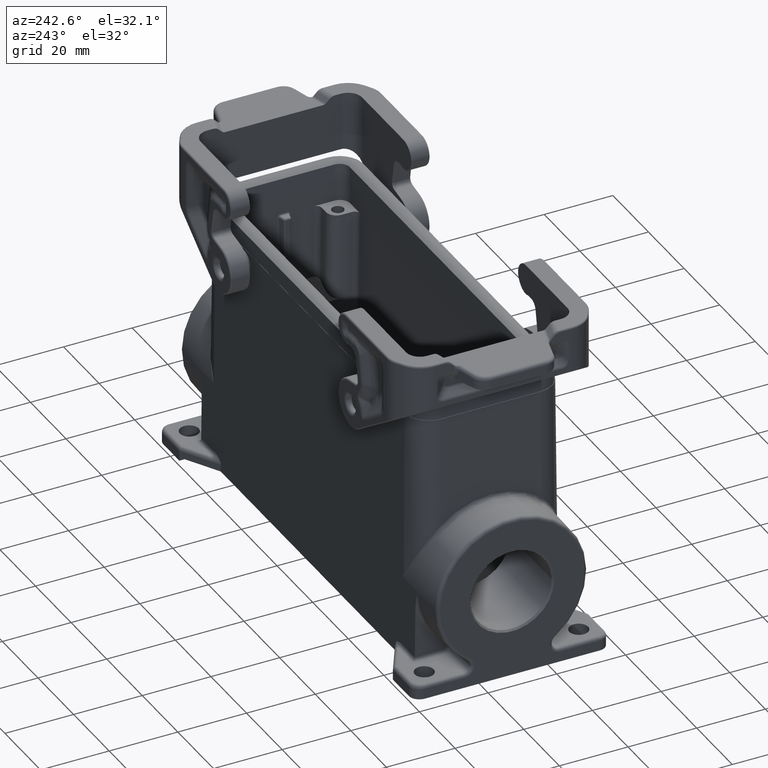
[diagram: clean part render]
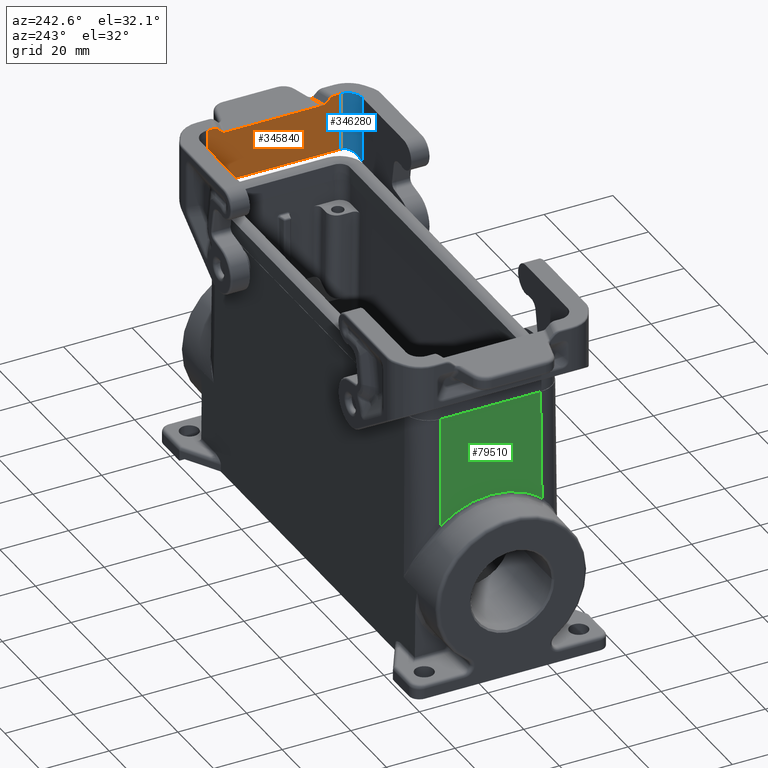
[diagram: same view with three faces highlighted in distinct colors, each labeled with its STEP entity id]
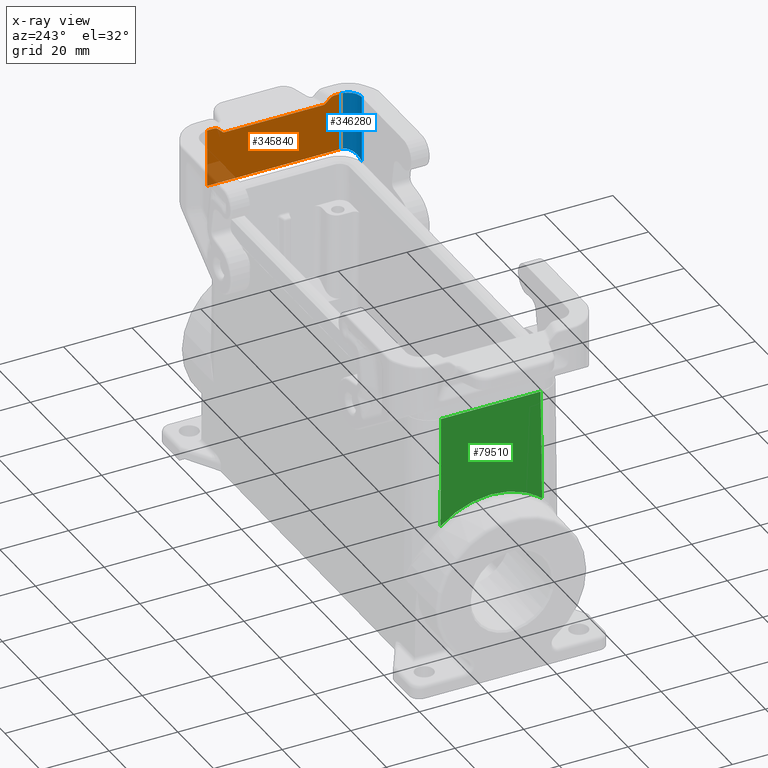
[diagram: x-ray of the same camera — body ghosted, the three highlighted faces saturated]
A machine part, auxiliary view with three faces highlighted in distinct colors.
The next image is the same camera in x-ray (body ghosted, the three faces saturated) — at least one of them is partly hidden behind the body in this view.
Their STEP definitions:

[orange] entity #345840 — the highlighted planar face has unit normal (1, -0, 0).
#226130=CARTESIAN_POINT('',(-1.43142200016536,20.7050799999998,
79.2847144494721));
#226140=VERTEX_POINT('',#226130);
#226170=CARTESIAN_POINT('',(-1.43142200016536,71.20508,79.2847144494419)
);
#226180=DIRECTION('',(-4.93038065763132E-32,-1.,1.16533684635963E-15));
#226190=VECTOR('',#226180,1.);
#226200=LINE('',#226170,#226190);
#226210=CARTESIAN_POINT('',(-1.43142200016536,59.7050799999999,
79.284714449472));
#226220=VERTEX_POINT('',#226210);
#226230=EDGE_CURVE('',#226220,#226140,#226200,.T.);
#314880=CARTESIAN_POINT('',(-1.43142200016536,59.70508,96.2000000000498)
);
#314890=VERTEX_POINT('',#314880);
#314920=CARTESIAN_POINT('',(-1.43142200016536,71.20508,96.2000000000748)
);
#314930=DIRECTION('',(-9.86076131526265E-32,-1.,-8.32667268468854E-17));
#314940=VECTOR('',#314930,1.);
#314950=LINE('',#314920,#314940);
#314960=CARTESIAN_POINT('',(-1.43142200016536,57.8832832302493,
96.2000000000498));
#314970=VERTEX_POINT('',#314960);
#314980=EDGE_CURVE('',#314890,#314970,#314950,.T.);
#336720=CARTESIAN_POINT('',(-1.43142200016536,23.9909783848622,
95.6142135624479));
#336730=VERTEX_POINT('',#336720);
#336760=CARTESIAN_POINT('',(-1.43142200016536,22.5268767697245,
94.2000000000748));
#336770=DIRECTION('',(-1.,2.46519032881566E-32,-5.44990558362115E-32));
#336780=DIRECTION('',(-2.46519032881566E-32,1.,8.72591889646287E-17));
#336790=AXIS2_PLACEMENT_3D('',#336760,#336770,#336780);
#336800=ELLIPSE('',#336790,2.07055236082017,2.);
#336810=CARTESIAN_POINT('',(-1.43142200016541,22.5268767697245,
96.2000000000748));
#336820=VERTEX_POINT('',#336810);
#336830=EDGE_CURVE('',#336820,#336730,#336800,.T.);
#337080=CARTESIAN_POINT('',(-1.43142200016536,57.8832832302493,
94.2000000000498));
#337090=DIRECTION('',(-1.,2.46519032881566E-32,-5.44990558362115E-32));
#337100=DIRECTION('',(-2.46519032881566E-32,1.,-2.47131214146301E-17));
#337110=AXIS2_PLACEMENT_3D('',#337080,#337090,#337100);
#337120=ELLIPSE('',#337110,2.07055236082017,2.);
#337130=CARTESIAN_POINT('',(-1.43142200016536,56.4191816151115,
95.6142135624229));
#337140=VERTEX_POINT('',#337130);
#337150=EDGE_CURVE('',#337140,#314970,#337120,.T.);
#337400=CARTESIAN_POINT('',(-1.43142200016524,10.9896899531708,
51.7326942909705));
#337410=DIRECTION('',(-6.70346867295264E-17,-0.719254596676404,
-0.694746590606866));
#337420=VECTOR('',#337410,1.);
#337430=LINE('',#337400,#337420);
#337440=CARTESIAN_POINT('',(-1.43142200016536,55.2583053728411,
94.4928932188885));
#337450=VERTEX_POINT('',#337440);
#337460=EDGE_CURVE('',#337140,#337450,#337430,.T.);
#344150=CARTESIAN_POINT('',(-1.43142200016536,54.5262545652722,
94.200000000075));
#344160=VERTEX_POINT('',#344150);
#344190=CARTESIAN_POINT('',(-1.43142200016536,69.95508,94.200000000075))
;
#344200=DIRECTION('',(9.86076131526265E-32,1.,8.32667268468865E-17));
#344210=VECTOR('',#344200,1.);
#344220=LINE('',#344190,#344210);
#344230=CARTESIAN_POINT('',(-1.43142200016541,25.8839054347276,
94.200000000075));
#344240=VERTEX_POINT('',#344230);
#344250=EDGE_CURVE('',#344240,#344160,#344220,.T.);
#344940=CARTESIAN_POINT('',(-1.43142200016518,25.1518546271587,
94.4928932188884));
#344950=VERTEX_POINT('',#344940);
#344980=CARTESIAN_POINT('',(-1.43142200016524,69.4204700468289,
51.7326942909705));
#344990=DIRECTION('',(-6.70346867295265E-17,0.719254596676404,
-0.694746590606865));
#345000=VECTOR('',#344990,1.);
#345010=LINE('',#344980,#345000);
#345020=EDGE_CURVE('',#336730,#344950,#345010,.T.);
#345230=CARTESIAN_POINT('',(-1.43142200016536,25.8839054347276,
95.200000000075));
#345240=DIRECTION('',(-1.,2.46519032881566E-32,-5.44990558362115E-32));
#345250=DIRECTION('',(-2.46519032881566E-32,1.,8.72591889646287E-17));
#345260=AXIS2_PLACEMENT_3D('',#345230,#345240,#345250);
#345270=ELLIPSE('',#345260,1.03527618041008,1.);
#345280=EDGE_CURVE('',#344240,#344950,#345270,.T.);
#345420=CARTESIAN_POINT('',(-1.43142200016536,60.4550802623444,
84.4173116978951));
#345430=DIRECTION('',(-1.,-3.246669353896E-48,3.89911970464034E-32));
#345440=DIRECTION('',(0.,1.,8.32667268468865E-17));
#345450=AXIS2_PLACEMENT_3D('',#345420,#345430,#345440);
#345460=PLANE('',#345450);
#345470=ORIENTED_EDGE('',*,*,#226230,.F.);
#345480=CARTESIAN_POINT('',(-1.43142200016536,20.7050799999992,
204.73222618257));
#345490=DIRECTION('',(-3.53180014490873E-31,4.22030405176146E-15,-1.));
#345500=VECTOR('',#345490,1.);
#345510=LINE('',#345480,#345500);
#345520=CARTESIAN_POINT('',(-1.43142200016536,20.7050799999997,
96.2000000000748));
#345530=VERTEX_POINT('',#345520);
#345540=EDGE_CURVE('',#345530,#226140,#345510,.T.);
#345550=ORIENTED_EDGE('',*,*,#345540,.T.);
#345560=CARTESIAN_POINT('',(-1.43142200016536,71.20508,96.2000000000748)
);
#345570=DIRECTION('',(9.86076131526265E-32,1.,8.32667268468897E-17));
#345580=VECTOR('',#345570,1.);
#345590=LINE('',#345560,#345580);
#345600=EDGE_CURVE('',#345530,#336820,#345590,.T.);
#345610=ORIENTED_EDGE('',*,*,#345600,.F.);
#345620=ORIENTED_EDGE('',*,*,#336830,.F.);
#345630=ORIENTED_EDGE('',*,*,#345020,.F.);
#345640=ORIENTED_EDGE('',*,*,#345280,.T.);
#345650=ORIENTED_EDGE('',*,*,#344250,.F.);
#345660=CARTESIAN_POINT('',(-1.43142200016536,54.5262545652722,
95.200000000075));
#345670=DIRECTION('',(-1.,2.46519032881566E-32,-5.44990558362115E-32));
#345680=DIRECTION('',(-2.46519032881566E-32,1.,-2.47131214146301E-17));
#345690=AXIS2_PLACEMENT_3D('',#345660,#345670,#345680);
#345700=ELLIPSE('',#345690,1.03527618041008,1.);
#345710=EDGE_CURVE('',#337450,#344160,#345700,.T.);
#345720=ORIENTED_EDGE('',*,*,#345710,.T.);
#345730=ORIENTED_EDGE('',*,*,#337460,.T.);
#345740=ORIENTED_EDGE('',*,*,#337150,.F.);
#345750=ORIENTED_EDGE('',*,*,#314980,.T.);
#345760=CARTESIAN_POINT('',(-1.43142200016536,59.7050800000001,
204.73222618257));
#345770=DIRECTION('',(7.34599760686103E-47,1.29574571479132E-15,1.));
#345780=VECTOR('',#345770,1.);
#345790=LINE('',#345760,#345780);
#345800=EDGE_CURVE('',#226220,#314890,#345790,.T.);
#345810=ORIENTED_EDGE('',*,*,#345800,.T.);
#345820=EDGE_LOOP('',(#345810,#345750,#345740,#345730,#345720,#345650,
#345640,#345630,#345620,#345610,#345550,#345470));
#345830=FACE_OUTER_BOUND('',#345820,.T.);
#345840=ADVANCED_FACE('',(#345830),#345460,.F.);

[blue] entity #346280 — the highlighted cylindrical surface (edge-blend (fillet) strip) has radius 4 mm, axis along (0, 0, -1).
#226210=CARTESIAN_POINT('',(-1.43142200016536,59.7050799999999,
79.284714449472));
#226220=VERTEX_POINT('',#226210);
#226250=CARTESIAN_POINT('',(2.56857799983464,59.7050799999999,
76.4838842966338));
#226260=DIRECTION('',(0.573576436350952,9.54588059980854E-16,
0.819152044289058));
#226270=DIRECTION('',(0.819152044289058,-8.95770679271245E-16,
-0.573576436350952));
#226280=AXIS2_PLACEMENT_3D('',#226250,#226260,#226270);
#226290=ELLIPSE('',#226280,4.88309835504543,4.);
#226300=CARTESIAN_POINT('',(2.56857799983464,63.7050799999999,
76.4838842966339));
#226310=VERTEX_POINT('',#226300);
#226320=EDGE_CURVE('',#226310,#226220,#226290,.T.);
#314790=CARTESIAN_POINT('',(2.56857799983464,63.70508,96.2000000000498))
;
#314800=VERTEX_POINT('',#314790);
#314830=CARTESIAN_POINT('',(2.56857799983464,59.70508,96.2000000000498))
;
#314840=DIRECTION('',(-7.34599760686103E-47,-1.29574571479132E-15,-1.));
#314850=DIRECTION('',(1.,-1.8624316551225E-16,2.95822839457879E-31));
#314860=AXIS2_PLACEMENT_3D('',#314830,#314840,#314850);
#314870=CIRCLE('',#314860,4.);
#314880=CARTESIAN_POINT('',(-1.43142200016536,59.70508,96.2000000000498)
);
#314890=VERTEX_POINT('',#314880);
#314900=EDGE_CURVE('',#314890,#314800,#314870,.T.);
#345760=CARTESIAN_POINT('',(-1.43142200016536,59.7050800000001,
204.73222618257));
#345770=DIRECTION('',(7.34599760686103E-47,1.29574571479132E-15,1.));
#345780=VECTOR('',#345770,1.);
#345790=LINE('',#345760,#345780);
#345800=EDGE_CURVE('',#226220,#314890,#345790,.T.);
#346120=CARTESIAN_POINT('',(2.56857799983464,59.7050800000001,
204.73222618257));
#346130=DIRECTION('',(-7.34599760686103E-47,-1.29574571479132E-15,-1.));
#346140=DIRECTION('',(1.,-1.8624316551225E-16,2.95822839457879E-31));
#346150=AXIS2_PLACEMENT_3D('',#346120,#346130,#346140);
#346160=CYLINDRICAL_SURFACE('',#346150,4.);
#346170=ORIENTED_EDGE('',*,*,#314900,.F.);
#346180=CARTESIAN_POINT('',(2.56857799983464,63.7050800000001,
204.73222618257));
#346190=DIRECTION('',(7.34599760686103E-47,1.29574571479132E-15,1.));
#346200=VECTOR('',#346190,1.);
#346210=LINE('',#346180,#346200);
#346220=EDGE_CURVE('',#226310,#314800,#346210,.T.);
#346230=ORIENTED_EDGE('',*,*,#346220,.T.);
#346240=ORIENTED_EDGE('',*,*,#226320,.F.);
#346250=ORIENTED_EDGE('',*,*,#345800,.F.);
#346260=EDGE_LOOP('',(#346250,#346240,#346230,#346170));
#346270=FACE_OUTER_BOUND('',#346260,.T.);
#346280=ADVANCED_FACE('',(#346270),#346160,.F.);

[green] entity #79510 — the highlighted planar face has unit normal (1, -0, -0.0087).
#1300=CARTESIAN_POINT('',(120.318578,25.7048134614492,74.5));
#1310=VERTEX_POINT('',#1300);
#1830=CARTESIAN_POINT('',(120.318578,54.7053465385508,74.5));
#1840=VERTEX_POINT('',#1830);
#1870=CARTESIAN_POINT('',(120.318578,0.,74.5));
#1880=DIRECTION('',(1.06873307065349E-18,1.,0.));
#1890=VECTOR('',#1880,1.);
#1900=LINE('',#1870,#1890);
#1910=EDGE_CURVE('',#1310,#1840,#1900,.T.);
#57470=CARTESIAN_POINT('',(120.601970741967,54.9887392805179,
42.0264082415494));
#57480=VERTEX_POINT('',#57470);
#57510=CARTESIAN_POINT('',(120.968196563161,55.3549651017114,
0.0610857484885959));
#57520=DIRECTION('',(-0.00872620324394422,-0.00872620324394434,
0.99992385047757));
#57530=VECTOR('',#57520,1.);
#57540=LINE('',#57510,#57530);
#57550=EDGE_CURVE('',#57480,#1840,#57540,.T.);
#73550=CARTESIAN_POINT('',(120.601970741967,25.4214207194819,
42.0264082415233));
#73560=VERTEX_POINT('',#73550);
#79150=CARTESIAN_POINT('',(120.968704894629,18.70508,0.00283673171921044
));
#79160=DIRECTION('',(-0.999961923064171,1.06869237657294E-18,
-0.00872653549837393));
#79170=DIRECTION('',(0.,1.,1.22464679914735E-16));
#79180=AXIS2_PLACEMENT_3D('',#79150,#79160,#79170);
#79190=PLANE('',#79180);
#79200=ORIENTED_EDGE('',*,*,#57550,.T.);
#79210=CARTESIAN_POINT('',(120.601970741967,25.4214207194819,
42.0264082415233));
#79220=CARTESIAN_POINT('',(120.601700588386,25.4581387596814,
42.0573647757447));
#79230=CARTESIAN_POINT('',(120.601431441954,25.4949538676778,
42.0882059020429));
#79240=CARTESIAN_POINT('',(120.592657024723,26.7028490784143,
43.0936545282682));
#79250=CARTESIAN_POINT('',(120.585184938145,27.968763835919,
43.9498708429079));
#79260=CARTESIAN_POINT('',(120.571009545039,30.9781652589275,
45.5742100039438));
#79270=CARTESIAN_POINT('',(120.56498976951,32.7502661989105,
46.2640079558392));
#79280=CARTESIAN_POINT('',(120.55689060107,36.4236037448019,
47.1920807346182));
#79290=CARTESIAN_POINT('',(120.554842397775,38.3106941486967,
47.4267815853));
#79300=CARTESIAN_POINT('',(120.554842397775,42.0994658513033,
47.4267815853));
#79310=CARTESIAN_POINT('',(120.55689060107,43.9865562551981,
47.1920807346182));
#79320=CARTESIAN_POINT('',(120.56498976951,47.6598938010895,
46.2640079558392));
#79330=CARTESIAN_POINT('',(120.571009545039,49.4319947410727,
45.5742100039437));
#79340=CARTESIAN_POINT('',(120.585184938145,52.4413961640802,
43.9498708429084));
#79350=CARTESIAN_POINT('',(120.592657024723,53.7073109215841,
43.0936545282693));
#79360=CARTESIAN_POINT('',(120.601431441954,54.9152061323118,
42.0882059020516));
#79370=CARTESIAN_POINT('',(120.601700588386,54.9520212403217,
42.0573647757679));
#79380=CARTESIAN_POINT('',(120.601970741967,54.9887392805179,
42.0264082415494));
#79390=B_SPLINE_CURVE_WITH_KNOTS('',3,(#79210,#79220,#79230,#79240,
#79250,#79260,#79270,#79280,#79290,#79300,#79310,#79320,#79330,#79340,
#79350,#79360,#79370,#79380),.UNSPECIFIED.,.F.,.F.,(4,2,2,2,2,2,2,2,4),(
0.,0.140929897986439,4.61176012079203,10.1639314900745,15.7161008050812,
21.2682701200879,26.8204414893706,31.2912717121739,31.4322016101292),
.UNSPECIFIED.);
#79400=EDGE_CURVE('',#73560,#57480,#79390,.T.);
#79410=ORIENTED_EDGE('',*,*,#79400,.T.);
#79420=CARTESIAN_POINT('',(120.968196563161,25.0551948982886,
0.0610857484885922));
#79430=DIRECTION('',(-0.00872620324394422,0.00872620324394409,
0.99992385047757));
#79440=VECTOR('',#79430,1.);
#79450=LINE('',#79420,#79440);
#79460=EDGE_CURVE('',#73560,#1310,#79450,.T.);
#79470=ORIENTED_EDGE('',*,*,#79460,.F.);
#79480=ORIENTED_EDGE('',*,*,#1910,.F.);
#79490=EDGE_LOOP('',(#79480,#79470,#79410,#79200));
#79500=FACE_OUTER_BOUND('',#79490,.T.);
#79510=ADVANCED_FACE('',(#79500),#79190,.F.);